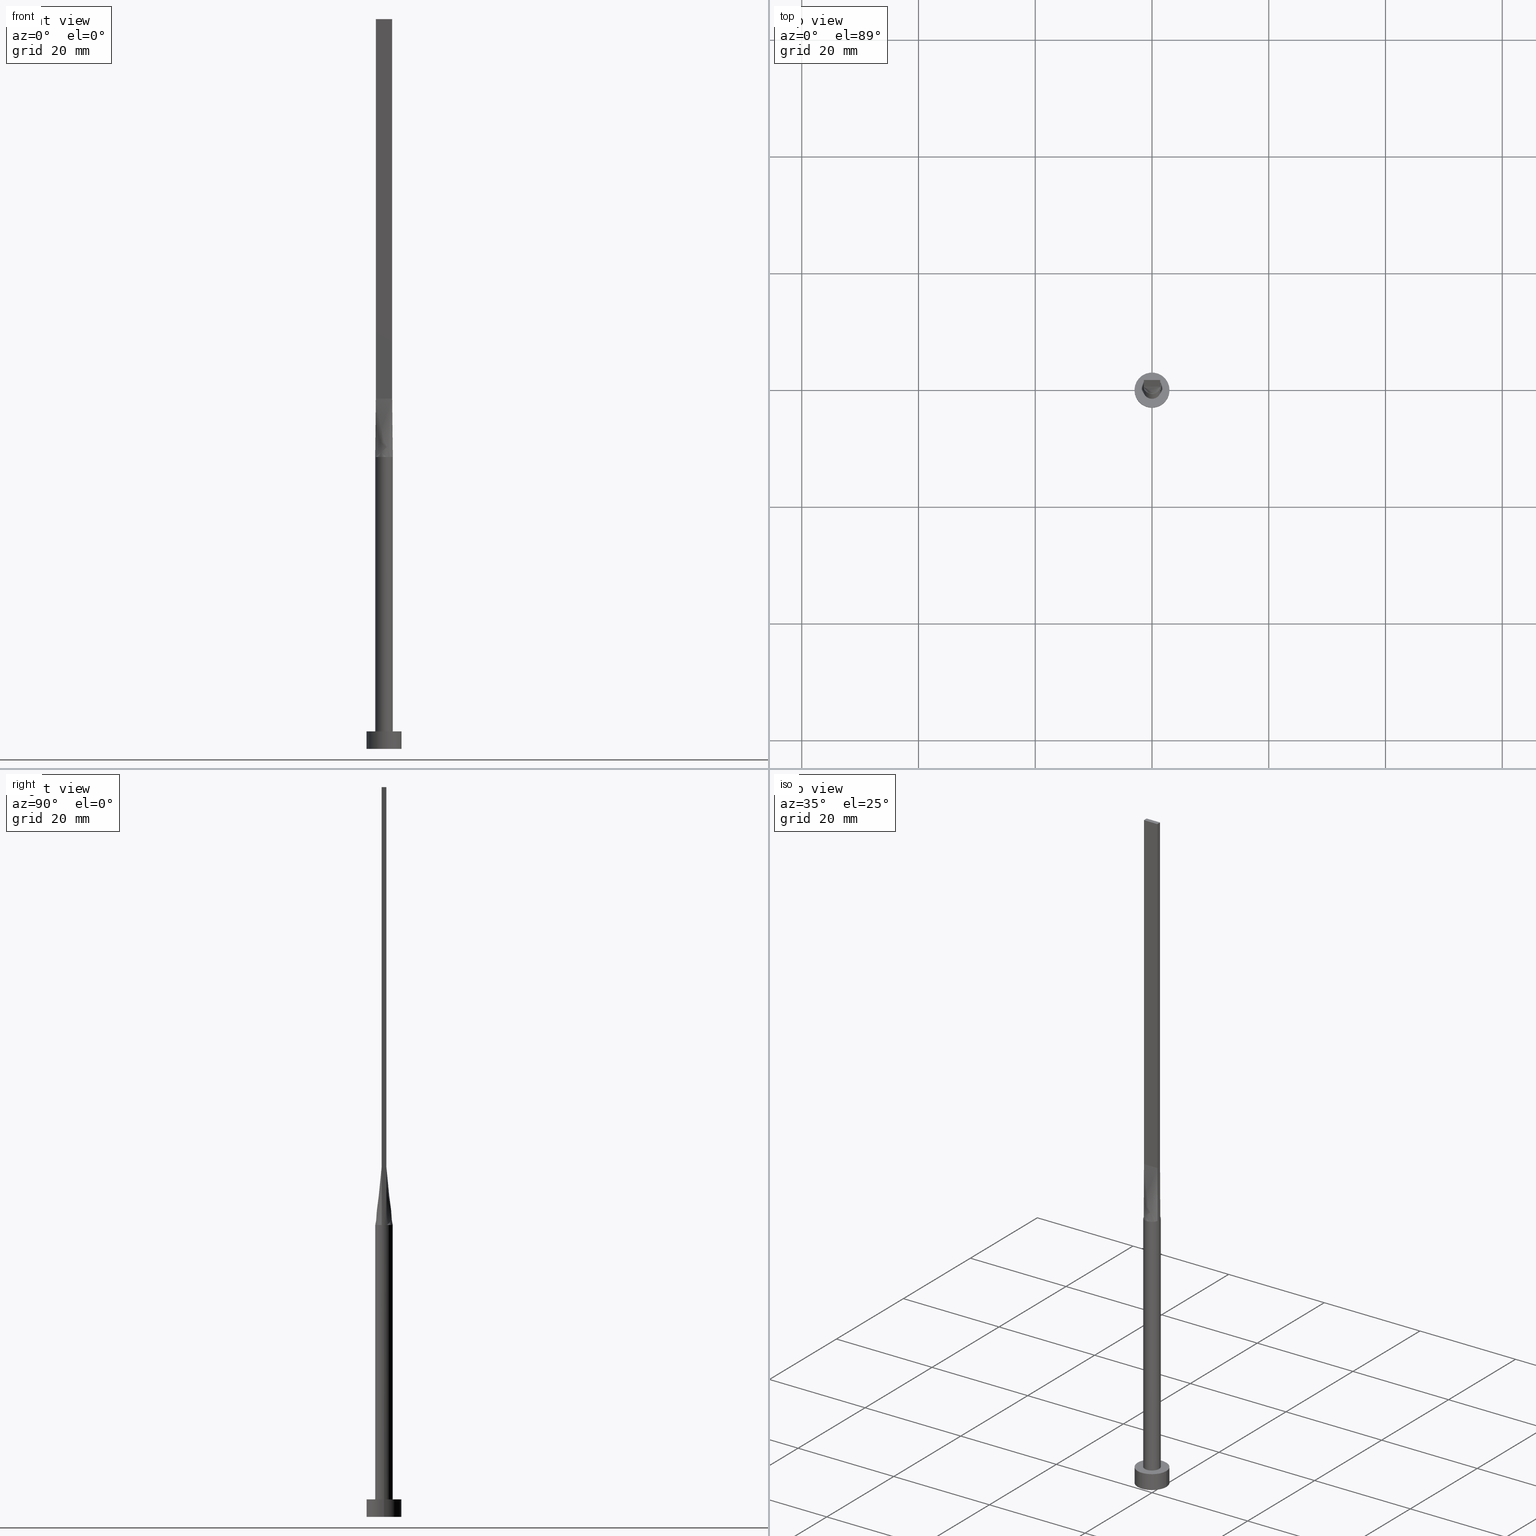
[diagram: canonical four-view strip — front | top / right | iso, engineering-drawing reading convention]
A machine part, canonical four-view strip (front | top / right | iso — engineering-drawing reading convention). The complete STEP part file that produces these views, byte-faithful:
ISO-10303-21;
HEADER;
FILE_DESCRIPTION (( 'STEP AP203' ),
    '1' );
FILE_NAME ('0fd5.STEP',
    '2026-02-12T09:08:40',
    ( '' ),
    ( '' ),
    'SwSTEP 2.0',
    'SolidWorks 2019',
    '' );
FILE_SCHEMA (( 'CONFIG_CONTROL_DESIGN' ));
ENDSEC;

DATA;
#1 = CARTESIAN_POINT ( 'NONE',  ( -1.283333333333333215, 0.4000000000000002442, 60.00000000000000000 ) ) ;
#2 = CALENDAR_DATE ( 2026, 12, 2 ) ;
#3 = LINE ( 'NONE', #353, #119 ) ;
#4 = CARTESIAN_POINT ( 'NONE',  ( 0.000000000000000000, 0.000000000000000000, 0.000000000000000000 ) ) ;
#5 = CARTESIAN_POINT ( 'NONE',  ( 1.480021770517838897, 0.2800062201479540103, 50.00000000000000711 ) ) ;
#6 = ORIENTED_EDGE ( 'NONE', *, *, #335, .F. ) ;
#7 = VECTOR ( 'NONE', #220, 1000.000000000000000 ) ;
#8 = CALENDAR_DATE ( 2026, 12, 2 ) ;
#9 = DIRECTION ( 'NONE',  ( -1.000000000000000000, -2.710505431213761085E-16, 0.000000000000000000 ) ) ;
#10 = VERTEX_POINT ( 'NONE', #196 ) ;
#11 = PERSON_AND_ORGANIZATION ( #421, #480 ) ;
#12 = APPROVAL ( #90, 'NEUR�EN�' ) ;
#13 = CARTESIAN_POINT ( 'NONE',  ( 1.421142960730617411, -0.4060408459230334111, 55.00000000000000711 ) ) ;
#14 = PERSON_AND_ORGANIZATION ( #421, #480 ) ;
#15 = LINE ( 'NONE', #93, #412 ) ;
#16 = ORIENTED_EDGE ( 'NONE', *, *, #24, .F. ) ;
#17 = CIRCLE ( 'NONE', #378, 3.000000000000000444 ) ;
#18 = AXIS2_PLACEMENT_3D ( 'NONE', #442, #533, #356 ) ;
#19 = ADVANCED_FACE ( 'NONE', ( #286 ), #422, .T. ) ;
#20 = LINE ( 'NONE', #13, #86 ) ;
#21 = CC_DESIGN_SECURITY_CLASSIFICATION ( #288, ( #296 ) ) ;
#22 = VERTEX_POINT ( 'NONE', #225 ) ;
#23 = DIRECTION ( 'NONE',  ( -2.710505431213761578E-16, -1.000000000000000000, 0.000000000000000000 ) ) ;
#24 = EDGE_CURVE ( 'NONE', #387, #574, #79, .T. ) ;
#25 = CARTESIAN_POINT ( 'NONE',  ( 1.283333333333333215, 0.4000000000000001887, 60.00000000000000000 ) ) ;
#26 = FACE_OUTER_BOUND ( 'NONE', #334, .T. ) ;
#27 =( LENGTH_UNIT ( ) NAMED_UNIT ( * ) SI_UNIT ( .MILLI., .METRE. ) );
#28 = CARTESIAN_POINT ( 'NONE',  ( -0.8166666666666659857, -0.3999999999999996336, 59.99999999999998579 ) ) ;
#29 = AXIS2_PLACEMENT_3D ( 'NONE', #560, #207, #63 ) ;
#30 = CC_DESIGN_PERSON_AND_ORGANIZATION_ASSIGNMENT ( #132, #326, ( #296 ) ) ;
#31 = CARTESIAN_POINT ( 'NONE',  ( 1.399999999999999689, 0.4000000000000002442, 125.0000000000000000 ) ) ;
#32 = FACE_OUTER_BOUND ( 'NONE', #454, .T. ) ;
#33 = FACE_OUTER_BOUND ( 'NONE', #136, .T. ) ;
#34 = ORIENTED_EDGE ( 'NONE', *, *, #572, .T. ) ;
#35 = CARTESIAN_POINT ( 'NONE',  ( 1.442362338805188937, 0.4121038472597355895, 50.00000000000000000 ) ) ;
#36 = CARTESIAN_POINT ( 'NONE',  ( 3.000000000000000444, 3.673940397442060361E-16, 0.000000000000000000 ) ) ;
#37 = CARTESIAN_POINT ( 'NONE',  ( -0.3767059690781856540, -1.463302066271690904, 50.00000000000001421 ) ) ;
#38 = FACE_BOUND ( 'NONE', #205, .T. ) ;
#39 = DIRECTION ( 'NONE',  ( -0.000000000000000000, -0.000000000000000000, -1.000000000000000000 ) ) ;
#40 = EDGE_CURVE ( 'NONE', #301, #574, #3, .T. ) ;
#41 = CARTESIAN_POINT ( 'NONE',  ( 1.212111761082483197, -0.8950936653899579376, 50.00000000000000000 ) ) ;
#42 = AXIS2_PLACEMENT_3D ( 'NONE', #451, #190, #203 ) ;
#43 = CARTESIAN_POINT ( 'NONE',  ( -1.399999999999999689, 0.4000000000000002442, 60.00000000000000711 ) ) ;
#44 = CARTESIAN_POINT ( 'NONE',  ( 1.114527776139990101, 1.017390422009413431, 50.00000000000000000 ) ) ;
#45 = CARTESIAN_POINT ( 'NONE',  ( -0.5833333333333325932, -0.3999999999999996336, 59.99999999999998579 ) ) ;
#46 = LINE ( 'NONE', #542, #204 ) ;
#47 = PERSON_AND_ORGANIZATION_ROLE ( 'design_owner' ) ;
#48 = DIRECTION ( 'NONE',  ( 5.808225924029488744E-17, 1.000000000000000000, -0.000000000000000000 ) ) ;
#49 = VECTOR ( 'NONE', #23, 1000.000000000000000 ) ;
#50 = ADVANCED_FACE ( 'NONE', ( #75 ), #569, .T. ) ;
#51 = APPROVAL_STATUS ( 'not_yet_approved' ) ;
#52 = CARTESIAN_POINT ( 'NONE',  ( 1.399999999999999911, -0.2666666666666664409, 60.00000000000000000 ) ) ;
#53 = CARTESIAN_POINT ( 'NONE',  ( 1.399999999999999689, 0.1333333333333334980, 60.00000000000000000 ) ) ;
#54 = EDGE_LOOP ( 'NONE', ( #554, #34, #187, #509, #330 ) ) ;
#55 = EDGE_CURVE ( 'NONE', #301, #251, #477, .T. ) ;
#56 = AXIS2_PLACEMENT_3D ( 'NONE', #4, #279, #503 ) ;
#57 = ORIENTED_EDGE ( 'NONE', *, *, #55, .T. ) ;
#58 = CARTESIAN_POINT ( 'NONE',  ( 1.500000000000000222, -0.1400549446402594711, 50.00000000000000711 ) ) ;
#59 = ORIENTED_EDGE ( 'NONE', *, *, #531, .T. ) ;
#60 = CARTESIAN_POINT ( 'NONE',  ( 0.000000000000000000, 0.000000000000000000, 3.000000000000000000 ) ) ;
#61 = AXIS2_PLACEMENT_3D ( 'NONE', #131, #404, #180 ) ;
#62 = ORIENTED_EDGE ( 'NONE', *, *, #105, .T. ) ;
#63 = DIRECTION ( 'NONE',  ( 1.000000000000000000, 0.000000000000000000, 0.000000000000000000 ) ) ;
#64 = PRODUCT ( '0fd5', '0fd5', '', ( #359 ) ) ;
#65 = CARTESIAN_POINT ( 'NONE',  ( 1.409267053536706671, 0.5276477295819161917, 50.00000000000001421 ) ) ;
#66 = CARTESIAN_POINT ( 'NONE',  ( 0.8665786268839186235, 1.235433898681765008, 50.00000000000000000 ) ) ;
#67 = LINE ( 'NONE', #310, #398 ) ;
#68 = ADVANCED_FACE ( 'NONE', ( #33 ), #110, .T. ) ;
#69 = CARTESIAN_POINT ( 'NONE',  ( 1.399999999999999689, 0.4000000000000002442, 60.00000000000000711 ) ) ;
#70 = CARTESIAN_POINT ( 'NONE',  ( -1.114527776139989212, 1.017390422009414319, 50.00000000000000711 ) ) ;
#71 = CARTESIAN_POINT ( 'NONE',  ( -1.421142960730617633, -0.4060408459230329670, 55.00000000000000711 ) ) ;
#72 = AXIS2_PLACEMENT_3D ( 'NONE', #192, #324, #418 ) ;
#73 = DIRECTION ( 'NONE',  ( 1.000000000000000000, 0.000000000000000000, 0.000000000000000000 ) ) ;
#74 = DIRECTION ( 'NONE',  ( 1.000000000000000000, 0.000000000000000000, 0.000000000000000000 ) ) ;
#75 = FACE_OUTER_BOUND ( 'NONE', #183, .T. ) ;
#76 = CARTESIAN_POINT ( 'NONE',  ( -1.212111761082482975, 0.8950936653899578266, 50.00000000000000000 ) ) ;
#77 = CARTESIAN_POINT ( 'NONE',  ( -3.000000000000000444, 0.000000000000000000, 3.000000000000000000 ) ) ;
#78 = ORIENTED_EDGE ( 'NONE', *, *, #105, .F. ) ;
#79 = LINE ( 'NONE', #272, #173 ) ;
#80 = CARTESIAN_POINT ( 'NONE',  ( -0.4666666666666661745, 0.4000000000000001887, 60.00000000000000000 ) ) ;
#81 = EDGE_CURVE ( 'NONE', #570, #22, #67, .T. ) ;
#82 = CARTESIAN_POINT ( 'NONE',  ( 1.421142960730617189, 0.4060408459230337996, 55.00000000000000711 ) ) ;
#83 = ORIENTED_EDGE ( 'NONE', *, *, #561, .T. ) ;
#84 = DIRECTION ( 'NONE',  ( -0.004228551254826051417, -0.001208157501378827629, -0.9999903298081123104 ) ) ;
#85 = ORIENTED_EDGE ( 'NONE', *, *, #502, .T. ) ;
#86 = VECTOR ( 'NONE', #139, 1000.000000000000000 ) ;
#87 = LOCAL_TIME ( 10, 8, 40.00000000000000000, #181 ) ;
#88 = DIRECTION ( 'NONE',  ( 0.000000000000000000, 0.000000000000000000, 1.000000000000000000 ) ) ;
#89 = EDGE_CURVE ( 'NONE', #149, #301, #214, .T. ) ;
#90 = APPROVAL_STATUS ( 'not_yet_approved' ) ;
#91 = FACE_OUTER_BOUND ( 'NONE', #54, .T. ) ;
#92 = ADVANCED_FACE ( 'NONE', ( #534 ), #331, .F. ) ;
#93 = CARTESIAN_POINT ( 'NONE',  ( 1.399999999999999689, 0.4000000000000002442, 60.00000000000000711 ) ) ;
#94 = VECTOR ( 'NONE', #84, 1000.000000000000000 ) ;
#95 =( GEOMETRIC_REPRESENTATION_CONTEXT ( 3 ) GLOBAL_UNCERTAINTY_ASSIGNED_CONTEXT ( ( #420 ) ) GLOBAL_UNIT_ASSIGNED_CONTEXT ( ( #27, #395, #348 ) ) REPRESENTATION_CONTEXT ( 'NONE', 'WORKASPACE' ) );
#96 = SHAPE_DEFINITION_REPRESENTATION ( #562, #140 ) ;
#97 = LINE ( 'NONE', #423, #544 ) ;
#98 = ORIENTED_EDGE ( 'NONE', *, *, #410, .F. ) ;
#99 = EDGE_CURVE ( 'NONE', #543, #116, #134, .T. ) ;
#100 = DATE_AND_TIME ( #455, #460 ) ;
#101 = CIRCLE ( 'NONE', #72, 3.000000000000000444 ) ;
#102 = EDGE_LOOP ( 'NONE', ( #85, #381 ) ) ;
#103 = DIRECTION ( 'NONE',  ( 1.000000000000000000, 0.000000000000000000, -0.000000000000000000 ) ) ;
#104 = ORIENTED_EDGE ( 'NONE', *, *, #200, .T. ) ;
#105 = EDGE_CURVE ( 'NONE', #387, #239, #46, .T. ) ;
#106 = CARTESIAN_POINT ( 'NONE',  ( 0.3767059690781852654, 1.463302066271692015, 50.00000000000001421 ) ) ;
#107 = B_SPLINE_SURFACE_WITH_KNOTS ( 'NONE', 3, 1, ( 
 ( #464, #291 ),
 ( #555, #52 ),
 ( #58, #236 ),
 ( #195, #53 ),
 ( #5, #453 ),
 ( #546, #415 ) ),
 .UNSPECIFIED., .F., .F., .F.,
 ( 4, 2, 4 ),
 ( 2, 2 ),
 ( 0.000000000000000000, 0.5000000000000000000, 1.000000000000000000 ),
 ( 0.000000000000000000, 1.000000000000000000 ),
 .UNSPECIFIED. ) ;
#108 = CARTESIAN_POINT ( 'NONE',  ( -1.399999999999999911, -0.3999999999999996336, 125.0000000000000000 ) ) ;
#109 = LINE ( 'NONE', #254, #289 ) ;
#110 = B_SPLINE_SURFACE_WITH_KNOTS ( 'NONE', 3, 1, ( 
 ( #218, #432 ),
 ( #401, #581 ),
 ( #393, #179 ),
 ( #345, #182 ),
 ( #471, #357 ),
 ( #120, #529 ) ),
 .UNSPECIFIED., .F., .F., .F.,
 ( 4, 2, 4 ),
 ( 2, 2 ),
 ( 0.000000000000000000, 0.5000000000000000000, 1.000000000000000000 ),
 ( 0.000000000000000000, 1.000000000000000000 ),
 .UNSPECIFIED. ) ;
#111 = DIRECTION ( 'NONE',  ( 1.000000000000000000, 5.329070518200751394E-15, 0.000000000000000000 ) ) ;
#112 = CARTESIAN_POINT ( 'NONE',  ( -0.7158926189626813041, -1.330660769095146634, 49.99999999999998579 ) ) ;
#113 = CARTESIAN_POINT ( 'NONE',  ( 0.1885753531885901724, 1.500000000000000666, 50.00000000000000711 ) ) ;
#114 = CARTESIAN_POINT ( 'NONE',  ( -1.442387148345315895, 0.4121110244020492197, 50.00000000000000000 ) ) ;
#115 = CARTESIAN_POINT ( 'NONE',  ( 1.114527776139989435, -1.017390422009414541, 50.00000000000001421 ) ) ;
#116 = VERTEX_POINT ( 'NONE', #361 ) ;
#117 = CARTESIAN_POINT ( 'NONE',  ( -1.399999999999999689, 0.4000000000000002442, 125.0000000000000000 ) ) ;
#118 = CARTESIAN_POINT ( 'NONE',  ( 0.000000000000000000, 0.000000000000000000, 50.00000000000000000 ) ) ;
#119 = VECTOR ( 'NONE', #222, 1000.000000000000000 ) ;
#120 = CARTESIAN_POINT ( 'NONE',  ( -1.442285921461235132, -0.4120816918460665224, 50.00000000000000000 ) ) ;
#121 = ORIENTED_EDGE ( 'NONE', *, *, #250, .F. ) ;
#122 = VECTOR ( 'NONE', #392, 1000.000000000000000 ) ;
#123 = CC_DESIGN_APPROVAL ( #201, ( #288 ) ) ;
#124 = FACE_OUTER_BOUND ( 'NONE', #102, .T. ) ;
#125 = DIRECTION ( 'NONE',  ( -1.000000000000000000, 0.000000000000000000, 0.000000000000000000 ) ) ;
#126 = DIRECTION ( 'NONE',  ( -0.000000000000000000, -0.000000000000000000, -1.000000000000000000 ) ) ;
#127 = ADVANCED_FACE ( 'NONE', ( #456 ), #238, .T. ) ;
#128 = PLANE ( 'NONE',  #320 ) ;
#129 = CARTESIAN_POINT ( 'NONE',  ( -1.442387148345315895, 0.4121110244020492197, 50.00000000000000000 ) ) ;
#130 = CARTESIAN_POINT ( 'NONE',  ( 0.9333333333333334592, -0.3999999999999997446, 60.00000000000000000 ) ) ;
#131 = CARTESIAN_POINT ( 'NONE',  ( 0.000000000000000000, 0.000000000000000000, 0.000000000000000000 ) ) ;
#132 = PERSON_AND_ORGANIZATION ( #421, #480 ) ;
#133 = DIRECTION ( 'NONE',  ( 0.000000000000000000, 0.000000000000000000, 1.000000000000000000 ) ) ;
#134 = CIRCLE ( 'NONE', #459, 1.500000000000000222 ) ;
#135 = CC_DESIGN_APPROVAL ( #12, ( #296 ) ) ;
#136 = EDGE_LOOP ( 'NONE', ( #520, #530, #506, #294, #165 ) ) ;
#137 = COORDINATED_UNIVERSAL_TIME_OFFSET ( 1, 0, .AHEAD. ) ;
#138 = ADVANCED_FACE ( 'NONE', ( #230 ), #283, .T. ) ;
#139 = DIRECTION ( 'NONE',  ( -0.004228551254826029733, 0.001208157501378870997, 0.9999903298081123104 ) ) ;
#140 = ADVANCED_BREP_SHAPE_REPRESENTATION ( '0fd5', ( #475, #56 ), #95 ) ;
#141 = DATE_TIME_ROLE ( 'creation_date' ) ;
#142 = DIRECTION ( 'NONE',  ( -1.000000000000000000, 5.808225924029488744E-17, 0.000000000000000000 ) ) ;
#143 = APPROVAL_DATE_TIME ( #240, #443 ) ;
#144 = DIRECTION ( 'NONE',  ( -2.710505431213761085E-16, 1.000000000000000000, -0.000000000000000000 ) ) ;
#145 = ORIENTED_EDGE ( 'NONE', *, *, #292, .F. ) ;
#146 = CIRCLE ( 'NONE', #360, 1.500000000000000222 ) ;
#147 = CARTESIAN_POINT ( 'NONE',  ( -1.359280768448767551, -0.6502025712814705205, 50.00000000000000000 ) ) ;
#148 = APPLICATION_CONTEXT ( 'configuration controlled 3d designs of mechanical parts and assemblies' ) ;
#149 = VERTEX_POINT ( 'NONE', #186 ) ;
#150 = ADVANCED_FACE ( 'NONE', ( #91 ), #107, .T. ) ;
#151 = CARTESIAN_POINT ( 'NONE',  ( 3.000000000000000444, 3.673940397442060361E-16, 3.000000000000000000 ) ) ;
#152 = EDGE_CURVE ( 'NONE', #309, #574, #20, .T. ) ;
#153 = EDGE_LOOP ( 'NONE', ( #501, #166, #287, #145, #247, #374 ) ) ;
#154 = FACE_OUTER_BOUND ( 'NONE', #416, .T. ) ;
#155 = DESIGN_CONTEXT ( 'detailed design', #148, 'design' ) ;
#156 = CARTESIAN_POINT ( 'NONE',  ( 1.399999999999999689, 0.4000000000000002442, 125.0000000000000000 ) ) ;
#157 = ADVANCED_FACE ( 'NONE', ( #413 ), #548, .T. ) ;
#158 = CARTESIAN_POINT ( 'NONE',  ( -1.399999999999999911, -0.3999999999999996336, 60.00000000000000711 ) ) ;
#159 = CARTESIAN_POINT ( 'NONE',  ( -1.212111761082483863, -0.8950936653899566053, 50.00000000000000000 ) ) ;
#160 = VECTOR ( 'NONE', #226, 1000.000000000000000 ) ;
#161 = DIRECTION ( 'NONE',  ( 1.000000000000000000, 0.000000000000000000, 0.000000000000000000 ) ) ;
#162 = LINE ( 'NONE', #31, #446 ) ;
#163 = CARTESIAN_POINT ( 'NONE',  ( 0.1885753531885901724, 1.500000000000000666, 50.00000000000000711 ) ) ;
#164 = CARTESIAN_POINT ( 'NONE',  ( -0.2333333333333329207, -0.3999999999999996336, 59.99999999999998579 ) ) ;
#165 = ORIENTED_EDGE ( 'NONE', *, *, #363, .F. ) ;
#166 = ORIENTED_EDGE ( 'NONE', *, *, #496, .F. ) ;
#167 = CARTESIAN_POINT ( 'NONE',  ( 0.000000000000000000, 0.000000000000000000, 3.000000000000000000 ) ) ;
#168 = DIRECTION ( 'NONE',  ( 2.710505431213761578E-16, 1.000000000000000000, 0.000000000000000000 ) ) ;
#169 = CARTESIAN_POINT ( 'NONE',  ( 1.442285921461234910, -0.4120816918460670220, 50.00000000000000000 ) ) ;
#170 = VERTEX_POINT ( 'NONE', #364 ) ;
#171 = CARTESIAN_POINT ( 'NONE',  ( -1.500000000000000222, 0.000000000000000000, 50.00000000000000000 ) ) ;
#172 = ORIENTED_EDGE ( 'NONE', *, *, #572, .F. ) ;
#173 = VECTOR ( 'NONE', #488, 1000.000000000000000 ) ;
#174 = CARTESIAN_POINT ( 'NONE',  ( -1.399999999999999689, 0.4000000000000002442, 60.00000000000000711 ) ) ;
#175 = LOCAL_TIME ( 10, 8, 40.00000000000000000, #323 ) ;
#176 = PRODUCT_RELATED_PRODUCT_CATEGORY ( 'detail', '', ( #64 ) ) ;
#177 = LINE ( 'NONE', #351, #160 ) ;
#178 = DIRECTION ( 'NONE',  ( 1.000000000000000000, 0.000000000000000000, 0.000000000000000000 ) ) ;
#179 = CARTESIAN_POINT ( 'NONE',  ( -1.399999999999999689, 0.1333333333333336923, 60.00000000000000000 ) ) ;
#180 = DIRECTION ( 'NONE',  ( 1.000000000000000000, 0.000000000000000000, 0.000000000000000000 ) ) ;
#181 = COORDINATED_UNIVERSAL_TIME_OFFSET ( 1, 0, .AHEAD. ) ;
#182 = CARTESIAN_POINT ( 'NONE',  ( -1.399999999999999689, -0.1333333333333328596, 60.00000000000000000 ) ) ;
#183 = EDGE_LOOP ( 'NONE', ( #376, #284, #59, #425 ) ) ;
#184 = EDGE_CURVE ( 'NONE', #219, #489, #322, .T. ) ;
#185 = APPLICATION_PROTOCOL_DEFINITION ( 'international standard', 'config_control_design', 1994, #375 ) ;
#186 = CARTESIAN_POINT ( 'NONE',  ( -1.399999999999999689, 0.4000000000000002442, 60.00000000000000711 ) ) ;
#187 = ORIENTED_EDGE ( 'NONE', *, *, #567, .T. ) ;
#188 = AXIS2_PLACEMENT_3D ( 'NONE', #439, #481, #558 ) ;
#189 = DATE_AND_TIME ( #8, #482 ) ;
#190 = DIRECTION ( 'NONE',  ( -0.000000000000000000, -0.000000000000000000, -1.000000000000000000 ) ) ;
#191 = APPROVAL_STATUS ( 'not_yet_approved' ) ;
#192 = CARTESIAN_POINT ( 'NONE',  ( 0.000000000000000000, 0.000000000000000000, 3.000000000000000000 ) ) ;
#193 = ADVANCED_FACE ( 'NONE', ( #498 ), #277, .F. ) ;
#194 = PERSON_AND_ORGANIZATION_ROLE ( 'classification_officer' ) ;
#195 = CARTESIAN_POINT ( 'NONE',  ( 1.499999999999999556, 0.1400549446402590548, 49.99999999999999289 ) ) ;
#196 = CARTESIAN_POINT ( 'NONE',  ( 1.399999999999999689, 0.4000000000000002442, 60.00000000000000711 ) ) ;
#197 = EDGE_CURVE ( 'NONE', #219, #466, #101, .T. ) ;
#198 = VECTOR ( 'NONE', #550, 1000.000000000000000 ) ;
#199 = ORIENTED_EDGE ( 'NONE', *, *, #209, .T. ) ;
#200 = EDGE_CURVE ( 'NONE', #10, #149, #97, .T. ) ;
#201 = APPROVAL ( #51, 'NEUR�EN�' ) ;
#202 = ORIENTED_EDGE ( 'NONE', *, *, #184, .F. ) ;
#203 = DIRECTION ( 'NONE',  ( -1.000000000000000000, 0.000000000000000000, 0.000000000000000000 ) ) ;
#204 = VECTOR ( 'NONE', #280, 1000.000000000000000 ) ;
#205 = EDGE_LOOP ( 'NONE', ( #494, #368 ) ) ;
#206 = B_SPLINE_SURFACE_WITH_KNOTS ( 'NONE', 3, 1, ( 
 ( #383, #69 ),
 ( #65, #25 ),
 ( #211, #210 ),
 ( #332, #514 ),
 ( #385, #338 ),
 ( #518, #298 ),
 ( #257, #340 ),
 ( #106, #293 ),
 ( #113, #435 ),
 ( #391, #571 ),
 ( #527, #465 ),
 ( #248, #80 ),
 ( #491, #394 ),
 ( #397, #312 ),
 ( #76, #575 ),
 ( #266, #269 ),
 ( #445, #1 ),
 ( #539, #43 ) ),
 .UNSPECIFIED., .F., .F., .F.,
 ( 4, 2, 2, 2, 2, 2, 2, 2, 4 ),
 ( 2, 2 ),
 ( 0.000000000000000000, 0.1250000000000000833, 0.2500000000000001665, 0.3750000000000001110, 0.5000000000000001110, 0.6250000000000002220, 0.7500000000000001110, 0.8750000000000001110, 1.000000000000000000 ),
 ( 0.000000000000000000, 1.000000000000000000 ),
 .UNSPECIFIED. ) ;
#207 = DIRECTION ( 'NONE',  ( 0.000000000000000000, 0.000000000000000000, 1.000000000000000000 ) ) ;
#208 = ORIENTED_EDGE ( 'NONE', *, *, #297, .T. ) ;
#209 = EDGE_CURVE ( 'NONE', #574, #10, #15, .T. ) ;
#210 = CARTESIAN_POINT ( 'NONE',  ( 1.166666666666666519, 0.4000000000000001332, 60.00000000000000000 ) ) ;
#211 = CARTESIAN_POINT ( 'NONE',  ( 1.359280768448766663, 0.6502025712814714087, 50.00000000000000000 ) ) ;
#212 = AXIS2_PLACEMENT_3D ( 'NONE', #367, #409, #321 ) ;
#213 = CARTESIAN_POINT ( 'NONE',  ( 0.000000000000000000, 0.000000000000000000, 50.00000000000000000 ) ) ;
#214 = LINE ( 'NONE', #174, #532 ) ;
#215 = ORIENTED_EDGE ( 'NONE', *, *, #507, .F. ) ;
#216 = CARTESIAN_POINT ( 'NONE',  ( 1.442393550978850802, -0.4121129214357137083, 50.00000000000000000 ) ) ;
#217 = CARTESIAN_POINT ( 'NONE',  ( 0.7158926189626808601, 1.330660769095147966, 49.99999999999999289 ) ) ;
#218 = CARTESIAN_POINT ( 'NONE',  ( -1.442285921461234688, 0.4120816918460674105, 50.00000000000000000 ) ) ;
#219 = VERTEX_POINT ( 'NONE', #371 ) ;
#220 = DIRECTION ( 'NONE',  ( -0.000000000000000000, -0.000000000000000000, -1.000000000000000000 ) ) ;
#221 = CC_DESIGN_PERSON_AND_ORGANIZATION_ASSIGNMENT ( #545, #276, ( #424 ) ) ;
#222 = DIRECTION ( 'NONE',  ( 1.000000000000000000, -5.808225924029488744E-17, 0.000000000000000000 ) ) ;
#223 = DIRECTION ( 'NONE',  ( 0.000000000000000000, 0.000000000000000000, 1.000000000000000000 ) ) ;
#224 = DIRECTION ( 'NONE',  ( -0.000000000000000000, -0.000000000000000000, -1.000000000000000000 ) ) ;
#225 = CARTESIAN_POINT ( 'NONE',  ( 1.500000000000000222, 1.836970198721030181E-16, 3.000000000000000000 ) ) ;
#226 = DIRECTION ( 'NONE',  ( 0.004228551254826029733, -0.001208157501378838471, 0.9999903298081123104 ) ) ;
#227 = CARTESIAN_POINT ( 'NONE',  ( -1.409267053536706671, 0.5276477295819163027, 50.00000000000000711 ) ) ;
#228 = CARTESIAN_POINT ( 'NONE',  ( 0.8665786268839185125, -1.235433898681766340, 50.00000000000002842 ) ) ;
#229 = APPLICATION_PROTOCOL_DEFINITION ( 'international standard', 'config_control_design', 1994, #148 ) ;
#230 = FACE_OUTER_BOUND ( 'NONE', #402, .T. ) ;
#231 = PERSON_AND_ORGANIZATION_ROLE ( 'creator' ) ;
#232 = APPROVAL_PERSON_ORGANIZATION ( #549, #201, #551 ) ;
#233 = CARTESIAN_POINT ( 'NONE',  ( 0.000000000000000000, 0.000000000000000000, 50.00000000000000000 ) ) ;
#234 = CC_DESIGN_APPROVAL ( #443, ( #424 ) ) ;
#235 = APPROVAL_DATE_TIME ( #285, #201 ) ;
#236 = CARTESIAN_POINT ( 'NONE',  ( 1.399999999999999689, -0.1333333333333331372, 60.00000000000000000 ) ) ;
#237 = EDGE_CURVE ( 'NONE', #466, #281, #327, .T. ) ;
#238 = CYLINDRICAL_SURFACE ( 'NONE', #212, 3.000000000000000444 ) ;
#239 = VERTEX_POINT ( 'NONE', #307 ) ;
#240 = DATE_AND_TIME ( #362, #384 ) ;
#241 = EDGE_LOOP ( 'NONE', ( #433, #333, #478, #57 ) ) ;
#242 = AXIS2_PLACEMENT_3D ( 'NONE', #118, #405, #161 ) ;
#243 = CARTESIAN_POINT ( 'NONE',  ( -1.283333333333333215, -0.3999999999999996336, 60.00000000000000000 ) ) ;
#244 = CARTESIAN_POINT ( 'NONE',  ( -1.442285921461235132, -0.4120816918460664113, 50.00000000000000000 ) ) ;
#245 = CC_DESIGN_PERSON_AND_ORGANIZATION_ASSIGNMENT ( #450, #231, ( #296 ) ) ;
#246 = DIRECTION ( 'NONE',  ( 2.710505431213761085E-16, -1.000000000000000000, 0.000000000000000000 ) ) ;
#247 = ORIENTED_EDGE ( 'NONE', *, *, #410, .T. ) ;
#248 = CARTESIAN_POINT ( 'NONE',  ( -0.7158926189626803049, 1.330660769095148410, 50.00000000000000000 ) ) ;
#249 = AXIS2_PLACEMENT_3D ( 'NONE', #536, #267, #168 ) ;
#250 = EDGE_CURVE ( 'NONE', #311, #387, #109, .T. ) ;
#251 = VERTEX_POINT ( 'NONE', #429 ) ;
#252 = DIRECTION ( 'NONE',  ( -1.000000000000000000, 0.000000000000000000, 0.000000000000000000 ) ) ;
#253 = VERTEX_POINT ( 'NONE', #35 ) ;
#254 = CARTESIAN_POINT ( 'NONE',  ( -1.399999999999999911, -0.3999999999999996336, 125.0000000000000000 ) ) ;
#255 = CARTESIAN_POINT ( 'NONE',  ( -1.212111761082482975, 0.8950936653899578266, 50.00000000000000000 ) ) ;
#256 = CARTESIAN_POINT ( 'NONE',  ( -1.114527776139990323, -1.017390422009413209, 50.00000000000001421 ) ) ;
#257 = CARTESIAN_POINT ( 'NONE',  ( 0.7158926189626808601, 1.330660769095147966, 49.99999999999999289 ) ) ;
#258 = CIRCLE ( 'NONE', #328, 1.500000000000000222 ) ;
#259 = LINE ( 'NONE', #82, #122 ) ;
#260 = CARTESIAN_POINT ( 'NONE',  ( 0.1166666666666669183, -0.3999999999999996336, 59.99999999999998579 ) ) ;
#261 = EDGE_CURVE ( 'NONE', #239, #10, #303, .T. ) ;
#262 = FACE_OUTER_BOUND ( 'NONE', #406, .T. ) ;
#263 = CARTESIAN_POINT ( 'NONE',  ( -1.399999999999999911, -0.3999999999999996336, 125.0000000000000000 ) ) ;
#264 = CARTESIAN_POINT ( 'NONE',  ( -0.8665786268839192896, -1.235433898681764786, 50.00000000000000711 ) ) ;
#265 = EDGE_LOOP ( 'NONE', ( #199, #290, #78, #366 ) ) ;
#266 = CARTESIAN_POINT ( 'NONE',  ( -1.359280768448767329, 0.6502025712814717417, 50.00000000000000711 ) ) ;
#267 = DIRECTION ( 'NONE',  ( 1.000000000000000000, -2.710505431213761578E-16, 0.000000000000000000 ) ) ;
#268 = CARTESIAN_POINT ( 'NONE',  ( -0.4666666666666660079, -0.3999999999999996336, 59.99999999999998579 ) ) ;
#269 = CARTESIAN_POINT ( 'NONE',  ( -1.166666666666666519, 0.4000000000000002442, 60.00000000000000000 ) ) ;
#270 = CARTESIAN_POINT ( 'NONE',  ( 0.000000000000000000, 0.000000000000000000, 50.00000000000000000 ) ) ;
#271 = AXIS2_PLACEMENT_3D ( 'NONE', #275, #9, #246 ) ;
#272 = CARTESIAN_POINT ( 'NONE',  ( 1.399999999999999911, -0.3999999999999998002, 125.0000000000000000 ) ) ;
#273 = ORIENTED_EDGE ( 'NONE', *, *, #99, .F. ) ;
#274 = AXIS2_PLACEMENT_3D ( 'NONE', #513, #133, #103 ) ;
#275 = CARTESIAN_POINT ( 'NONE',  ( 1.399999999999999911, -0.3999999999999998002, 125.0000000000000000 ) ) ;
#276 = PERSON_AND_ORGANIZATION_ROLE ( 'creator' ) ;
#277 = PLANE ( 'NONE',  #557 ) ;
#278 = ORIENTED_EDGE ( 'NONE', *, *, #461, .T. ) ;
#279 = DIRECTION ( 'NONE',  ( 0.000000000000000000, 0.000000000000000000, 1.000000000000000000 ) ) ;
#280 = DIRECTION ( 'NONE',  ( -2.710505431213761085E-16, 1.000000000000000000, 0.000000000000000000 ) ) ;
#281 = VERTEX_POINT ( 'NONE', #515 ) ;
#282 = EDGE_CURVE ( 'NONE', #170, #22, #258, .T. ) ;
#283 = PLANE ( 'NONE',  #274 ) ;
#284 = ORIENTED_EDGE ( 'NONE', *, *, #184, .T. ) ;
#285 = DATE_AND_TIME ( #2, #87 ) ;
#286 = FACE_OUTER_BOUND ( 'NONE', #241, .T. ) ;
#287 = ORIENTED_EDGE ( 'NONE', *, *, #457, .F. ) ;
#288 = SECURITY_CLASSIFICATION ( '', '', #411 ) ;
#289 = VECTOR ( 'NONE', #382, 1000.000000000000000 ) ;
#290 = ORIENTED_EDGE ( 'NONE', *, *, #261, .F. ) ;
#291 = CARTESIAN_POINT ( 'NONE',  ( 1.399999999999999911, -0.3999999999999998002, 60.00000000000000711 ) ) ;
#292 = EDGE_CURVE ( 'NONE', #116, #251, #427, .T. ) ;
#293 = CARTESIAN_POINT ( 'NONE',  ( 0.2333333333333340864, 0.4000000000000001887, 59.99999999999998579 ) ) ;
#294 = ORIENTED_EDGE ( 'NONE', *, *, #89, .F. ) ;
#295 = DIRECTION ( 'NONE',  ( -0.000000000000000000, -0.000000000000000000, -1.000000000000000000 ) ) ;
#296 = PRODUCT_DEFINITION_FORMATION_WITH_SPECIFIED_SOURCE ( 'LIBOVOLN�', '', #64, .NOT_KNOWN. ) ;
#297 = EDGE_CURVE ( 'NONE', #302, #311, #428, .T. ) ;
#298 = CARTESIAN_POINT ( 'NONE',  ( 0.5833333333333334814, 0.4000000000000001887, 59.99999999999998579 ) ) ;
#299 = DIRECTION ( 'NONE',  ( 0.000000000000000000, 0.000000000000000000, 1.000000000000000000 ) ) ;
#300 = CARTESIAN_POINT ( 'NONE',  ( 1.166666666666666741, -0.3999999999999997446, 60.00000000000000000 ) ) ;
#301 = VERTEX_POINT ( 'NONE', #158 ) ;
#302 = VERTEX_POINT ( 'NONE', #566 ) ;
#303 = LINE ( 'NONE', #431, #372 ) ;
#304 = CARTESIAN_POINT ( 'NONE',  ( -0.7158926189626803049, 1.330660769095148410, 50.00000000000000000 ) ) ;
#305 = CARTESIAN_POINT ( 'NONE',  ( 0.5833333333333334814, -0.3999999999999997446, 60.00000000000000000 ) ) ;
#306 = CC_DESIGN_DATE_AND_TIME_ASSIGNMENT ( #189, #547, ( #288 ) ) ;
#307 = CARTESIAN_POINT ( 'NONE',  ( 1.399999999999999689, 0.4000000000000002442, 125.0000000000000000 ) ) ;
#308 = APPROVAL_PERSON_ORGANIZATION ( #541, #12, #499 ) ;
#309 = VERTEX_POINT ( 'NONE', #216 ) ;
#310 = CARTESIAN_POINT ( 'NONE',  ( 1.500000000000000222, 1.836970198721030181E-16, 50.00000000000000000 ) ) ;
#311 = VERTEX_POINT ( 'NONE', #108 ) ;
#312 = CARTESIAN_POINT ( 'NONE',  ( -0.8166666666666662078, 0.4000000000000001887, 60.00000000000000000 ) ) ;
#313 = CARTESIAN_POINT ( 'NONE',  ( 0.4666666666666670071, -0.3999999999999997446, 60.00000000000000000 ) ) ;
#314 = ORIENTED_EDGE ( 'NONE', *, *, #502, .F. ) ;
#315 = CARTESIAN_POINT ( 'NONE',  ( -1.399999999999999689, 0.4000000000000002442, 125.0000000000000000 ) ) ;
#316 = ADVANCED_FACE ( 'NONE', ( #262 ), #474, .F. ) ;
#317 = CARTESIAN_POINT ( 'NONE',  ( 1.409267053536706671, 0.5276477295819161917, 50.00000000000001421 ) ) ;
#318 = CARTESIAN_POINT ( 'NONE',  ( 1.399999999999999911, -0.3999999999999998002, 60.00000000000000711 ) ) ;
#319 = LINE ( 'NONE', #315, #7 ) ;
#320 = AXIS2_PLACEMENT_3D ( 'NONE', #486, #223, #352 ) ;
#321 = DIRECTION ( 'NONE',  ( -1.000000000000000000, 0.000000000000000000, 0.000000000000000000 ) ) ;
#322 = LINE ( 'NONE', #151, #198 ) ;
#323 = COORDINATED_UNIVERSAL_TIME_OFFSET ( 1, 0, .AHEAD. ) ;
#324 = DIRECTION ( 'NONE',  ( 0.000000000000000000, 0.000000000000000000, 1.000000000000000000 ) ) ;
#325 = ADVANCED_FACE ( 'NONE', ( #154 ), #379, .F. ) ;
#326 = PERSON_AND_ORGANIZATION_ROLE ( 'design_supplier' ) ;
#327 = LINE ( 'NONE', #505, #504 ) ;
#328 = AXIS2_PLACEMENT_3D ( 'NONE', #60, #563, #73 ) ;
#329 = CARTESIAN_POINT ( 'NONE',  ( -1.399999999999999911, -0.3999999999999996336, 60.00000000000000711 ) ) ;
#330 = ORIENTED_EDGE ( 'NONE', *, *, #152, .F. ) ;
#331 = PLANE ( 'NONE',  #271 ) ;
#332 = CARTESIAN_POINT ( 'NONE',  ( 1.212111761082483197, 0.8950936653899574935, 50.00000000000000000 ) ) ;
#333 = ORIENTED_EDGE ( 'NONE', *, *, #152, .T. ) ;
#334 = EDGE_LOOP ( 'NONE', ( #83, #369, #389, #553 ) ) ;
#335 = EDGE_CURVE ( 'NONE', #239, #302, #162, .T. ) ;
#336 = DIRECTION ( 'NONE',  ( 1.000000000000000000, 0.000000000000000000, 0.000000000000000000 ) ) ;
#337 = VECTOR ( 'NONE', #346, 1000.000000000000000 ) ;
#338 = CARTESIAN_POINT ( 'NONE',  ( 0.8166666666666666519, 0.4000000000000001887, 59.99999999999998579 ) ) ;
#339 = CARTESIAN_POINT ( 'NONE',  ( -1.359280768448767329, 0.6502025712814717417, 50.00000000000000711 ) ) ;
#340 = CARTESIAN_POINT ( 'NONE',  ( 0.4666666666666670071, 0.4000000000000001887, 59.99999999999998579 ) ) ;
#341 = CARTESIAN_POINT ( 'NONE',  ( -0.3767059690781846548, 1.463302066271692015, 50.00000000000000000 ) ) ;
#342 = CARTESIAN_POINT ( 'NONE',  ( 0.1885753531885892564, -1.499999999999999778, 50.00000000000001421 ) ) ;
#343 = DIRECTION ( 'NONE',  ( 0.000000000000000000, 0.000000000000000000, 1.000000000000000000 ) ) ;
#344 = CARTESIAN_POINT ( 'NONE',  ( 1.500000000000000000, -9.795443734464536283E-18, 50.00000000000000000 ) ) ;
#345 = CARTESIAN_POINT ( 'NONE',  ( -1.500000000000000222, -0.1400549446402585274, 49.99999999999999289 ) ) ;
#346 = DIRECTION ( 'NONE',  ( -0.000000000000000000, -0.000000000000000000, -1.000000000000000000 ) ) ;
#347 = AXIS2_PLACEMENT_3D ( 'NONE', #270, #39, #125 ) ;
#348 =( NAMED_UNIT ( * ) SI_UNIT ( $, .STERADIAN. ) SOLID_ANGLE_UNIT ( ) );
#349 = DIRECTION ( 'NONE',  ( -2.710505431213761578E-16, -1.000000000000000000, 0.000000000000000000 ) ) ;
#350 = EDGE_CURVE ( 'NONE', #22, #170, #146, .T. ) ;
#351 = CARTESIAN_POINT ( 'NONE',  ( -1.421142960730617189, 0.4060408459230336331, 55.00000000000000711 ) ) ;
#352 = DIRECTION ( 'NONE',  ( 1.000000000000000000, 0.000000000000000000, -0.000000000000000000 ) ) ;
#353 = CARTESIAN_POINT ( 'NONE',  ( -1.399999999999999911, -0.3999999999999996336, 60.00000000000000711 ) ) ;
#354 = ORIENTED_EDGE ( 'NONE', *, *, #461, .F. ) ;
#355 = CC_DESIGN_PERSON_AND_ORGANIZATION_ASSIGNMENT ( #11, #47, ( #64 ) ) ;
#356 = DIRECTION ( 'NONE',  ( 1.000000000000000000, 0.000000000000000000, 0.000000000000000000 ) ) ;
#357 = CARTESIAN_POINT ( 'NONE',  ( -1.399999999999999911, -0.2666666666666661634, 60.00000000000000000 ) ) ;
#358 = ADVANCED_FACE ( 'NONE', ( #26 ), #206, .T. ) ;
#359 = MECHANICAL_CONTEXT ( 'NONE', #375, 'mechanical' ) ;
#360 = AXIS2_PLACEMENT_3D ( 'NONE', #167, #343, #336 ) ;
#361 = CARTESIAN_POINT ( 'NONE',  ( -1.500000000000000222, 8.735352324927310277E-17, 50.00000000000000000 ) ) ;
#362 = CALENDAR_DATE ( 2026, 12, 2 ) ;
#363 = EDGE_CURVE ( 'NONE', #543, #149, #177, .T. ) ;
#364 = CARTESIAN_POINT ( 'NONE',  ( -1.500000000000000222, 0.000000000000000000, 3.000000000000000000 ) ) ;
#365 = COORDINATED_UNIVERSAL_TIME_OFFSET ( 1, 0, .AHEAD. ) ;
#366 = ORIENTED_EDGE ( 'NONE', *, *, #24, .T. ) ;
#367 = CARTESIAN_POINT ( 'NONE',  ( 0.000000000000000000, 0.000000000000000000, 3.000000000000000000 ) ) ;
#368 = ORIENTED_EDGE ( 'NONE', *, *, #350, .F. ) ;
#369 = ORIENTED_EDGE ( 'NONE', *, *, #363, .T. ) ;
#370 = CALENDAR_DATE ( 2026, 12, 2 ) ;
#371 = CARTESIAN_POINT ( 'NONE',  ( 3.000000000000000444, 3.673940397442060361E-16, 3.000000000000000000 ) ) ;
#372 = VECTOR ( 'NONE', #295, 1000.000000000000000 ) ;
#373 = EDGE_LOOP ( 'NONE', ( #202, #314, #516, #473 ) ) ;
#374 = ORIENTED_EDGE ( 'NONE', *, *, #282, .T. ) ;
#375 = APPLICATION_CONTEXT ( 'configuration controlled 3d designs of mechanical parts and assemblies' ) ;
#376 = ORIENTED_EDGE ( 'NONE', *, *, #197, .F. ) ;
#377 = CLOSED_SHELL ( 'NONE', ( #485, #50, #127, #463, #325, #157, #19, #150, #68, #358, #316, #540, #193, #92, #138 ) ) ;
#378 = AXIS2_PLACEMENT_3D ( 'NONE', #386, #400, #178 ) ;
#379 = PLANE ( 'NONE',  #188 ) ;
#380 = CC_DESIGN_DATE_AND_TIME_ASSIGNMENT ( #414, #141, ( #424 ) ) ;
#381 = ORIENTED_EDGE ( 'NONE', *, *, #197, .T. ) ;
#382 = DIRECTION ( 'NONE',  ( 1.000000000000000000, -5.808225924029488744E-17, 0.000000000000000000 ) ) ;
#383 = CARTESIAN_POINT ( 'NONE',  ( 1.442285921461234910, 0.4120816918460671330, 50.00000000000000000 ) ) ;
#384 = LOCAL_TIME ( 10, 8, 40.00000000000000000, #365 ) ;
#385 = CARTESIAN_POINT ( 'NONE',  ( 1.114527776139990101, 1.017390422009413431, 50.00000000000000000 ) ) ;
#386 = CARTESIAN_POINT ( 'NONE',  ( 0.000000000000000000, 0.000000000000000000, 3.000000000000000000 ) ) ;
#387 = VERTEX_POINT ( 'NONE', #579 ) ;
#388 = CARTESIAN_POINT ( 'NONE',  ( 0.2333333333333336701, -0.3999999999999996891, 59.99999999999999289 ) ) ;
#389 = ORIENTED_EDGE ( 'NONE', *, *, #200, .F. ) ;
#390 = ORIENTED_EDGE ( 'NONE', *, *, #561, .F. ) ;
#391 = CARTESIAN_POINT ( 'NONE',  ( -0.1885753531885899226, 1.500000000000000888, 50.00000000000001421 ) ) ;
#392 = DIRECTION ( 'NONE',  ( -0.004228551254826051417, -0.001208157501378865576, 0.9999903298081123104 ) ) ;
#393 = CARTESIAN_POINT ( 'NONE',  ( -1.500000000000000222, 0.1400549446402596099, 50.00000000000000711 ) ) ;
#394 = CARTESIAN_POINT ( 'NONE',  ( -0.5833333333333328152, 0.4000000000000001887, 60.00000000000000000 ) ) ;
#395 =( NAMED_UNIT ( * ) PLANE_ANGLE_UNIT ( ) SI_UNIT ( $, .RADIAN. ) );
#396 = CARTESIAN_POINT ( 'NONE',  ( 0.000000000000000000, 0.000000000000000000, 3.000000000000000000 ) ) ;
#397 = CARTESIAN_POINT ( 'NONE',  ( -1.114527776139989212, 1.017390422009414319, 50.00000000000000711 ) ) ;
#398 = VECTOR ( 'NONE', #126, 1000.000000000000000 ) ;
#399 = AXIS2_PLACEMENT_3D ( 'NONE', #156, #469, #468 ) ;
#400 = DIRECTION ( 'NONE',  ( 0.000000000000000000, 0.000000000000000000, 1.000000000000000000 ) ) ;
#401 = CARTESIAN_POINT ( 'NONE',  ( -1.480021770517838231, 0.2800062201479542878, 50.00000000000000711 ) ) ;
#402 = EDGE_LOOP ( 'NONE', ( #426, #208, #523, #62 ) ) ;
#403 = EDGE_CURVE ( 'NONE', #281, #489, #419, .T. ) ;
#404 = DIRECTION ( 'NONE',  ( 0.000000000000000000, 0.000000000000000000, 1.000000000000000000 ) ) ;
#405 = DIRECTION ( 'NONE',  ( 0.000000000000000000, 0.000000000000000000, 1.000000000000000000 ) ) ;
#406 = EDGE_LOOP ( 'NONE', ( #104, #354, #6, #430 ) ) ;
#407 = CARTESIAN_POINT ( 'NONE',  ( 1.283333333333333437, -0.3999999999999997446, 60.00000000000000000 ) ) ;
#408 = APPROVAL_ROLE ( '' ) ;
#409 = DIRECTION ( 'NONE',  ( -0.000000000000000000, -0.000000000000000000, -1.000000000000000000 ) ) ;
#410 = EDGE_CURVE ( 'NONE', #116, #170, #535, .T. ) ;
#411 = SECURITY_CLASSIFICATION_LEVEL ( 'unclassified' ) ;
#412 = VECTOR ( 'NONE', #144, 1000.000000000000000 ) ;
#413 = FACE_OUTER_BOUND ( 'NONE', #153, .T. ) ;
#414 = DATE_AND_TIME ( #370, #175 ) ;
#415 = CARTESIAN_POINT ( 'NONE',  ( 1.399999999999999689, 0.4000000000000002442, 60.00000000000000711 ) ) ;
#416 = EDGE_LOOP ( 'NONE', ( #438, #462 ) ) ;
#417 = APPROVAL_DATE_TIME ( #100, #12 ) ;
#418 = DIRECTION ( 'NONE',  ( 1.000000000000000000, 0.000000000000000000, 0.000000000000000000 ) ) ;
#419 = CIRCLE ( 'NONE', #61, 3.000000000000000444 ) ;
#420 = UNCERTAINTY_MEASURE_WITH_UNIT (LENGTH_MEASURE( 1.000000000000000082E-05 ), #27, 'distance_accuracy_value', 'NONE');
#421 = PERSON ( 'NEUR�EN�', 'NEUR�EN�', 'NEUR�EN�', ('NEUR�EN�'), ('NEUR�EN�'), ('NEUR�EN�') ) ;
#422 = B_SPLINE_SURFACE_WITH_KNOTS ( 'NONE', 3, 1, ( 
 ( #244, #329 ),
 ( #458, #243 ),
 ( #147, #564 ),
 ( #159, #525 ),
 ( #256, #28 ),
 ( #264, #45 ),
 ( #112, #268 ),
 ( #37, #164 ),
 ( #538, #448 ),
 ( #342, #260 ),
 ( #444, #388 ),
 ( #441, #313 ),
 ( #228, #305 ),
 ( #115, #437 ),
 ( #41, #130 ),
 ( #573, #300 ),
 ( #484, #407 ),
 ( #169, #318 ) ),
 .UNSPECIFIED., .F., .F., .F.,
 ( 4, 2, 2, 2, 2, 2, 2, 2, 4 ),
 ( 2, 2 ),
 ( 0.000000000000000000, 0.1250000000000000833, 0.2500000000000001665, 0.3750000000000001110, 0.5000000000000001110, 0.6250000000000001110, 0.7500000000000000000, 0.8750000000000000000, 1.000000000000000000 ),
 ( 0.000000000000000000, 1.000000000000000000 ),
 .UNSPECIFIED. ) ;
#423 = CARTESIAN_POINT ( 'NONE',  ( -1.399999999999999689, 0.4000000000000002442, 60.00000000000000711 ) ) ;
#424 = PRODUCT_DEFINITION ( 'NEZN�M�', '', #296, #155 ) ;
#425 = ORIENTED_EDGE ( 'NONE', *, *, #237, .F. ) ;
#426 = ORIENTED_EDGE ( 'NONE', *, *, #335, .T. ) ;
#427 = CIRCLE ( 'NONE', #29, 1.500000000000000222 ) ;
#428 = LINE ( 'NONE', #117, #49 ) ;
#429 = CARTESIAN_POINT ( 'NONE',  ( -1.442368678646663405, -0.4121057215347019853, 50.00000000000000000 ) ) ;
#430 = ORIENTED_EDGE ( 'NONE', *, *, #261, .T. ) ;
#431 = CARTESIAN_POINT ( 'NONE',  ( 1.399999999999999689, 0.4000000000000002442, 125.0000000000000000 ) ) ;
#432 = CARTESIAN_POINT ( 'NONE',  ( -1.399999999999999689, 0.4000000000000002442, 60.00000000000000711 ) ) ;
#433 = ORIENTED_EDGE ( 'NONE', *, *, #457, .T. ) ;
#434 = CIRCLE ( 'NONE', #511, 1.500000000000000222 ) ;
#435 = CARTESIAN_POINT ( 'NONE',  ( 0.1166666666666675983, 0.4000000000000001887, 59.99999999999999289 ) ) ;
#436 = LINE ( 'NONE', #263, #495 ) ;
#437 = CARTESIAN_POINT ( 'NONE',  ( 0.8166666666666667629, -0.3999999999999997446, 60.00000000000000000 ) ) ;
#438 = ORIENTED_EDGE ( 'NONE', *, *, #403, .F. ) ;
#439 = CARTESIAN_POINT ( 'NONE',  ( 0.000000000000000000, 0.000000000000000000, 0.000000000000000000 ) ) ;
#440 = CARTESIAN_POINT ( 'NONE',  ( 1.399999999999999911, -0.3999999999999998002, 60.00000000000000711 ) ) ;
#441 = CARTESIAN_POINT ( 'NONE',  ( 0.7158926189626801939, -1.330660769095147744, 50.00000000000000711 ) ) ;
#442 = CARTESIAN_POINT ( 'NONE',  ( 0.000000000000000000, 0.000000000000000000, 50.00000000000000000 ) ) ;
#443 = APPROVAL ( #191, 'NEUR�EN�' ) ;
#444 = CARTESIAN_POINT ( 'NONE',  ( 0.3767059690781844328, -1.463302066271691571, 50.00000000000000000 ) ) ;
#445 = CARTESIAN_POINT ( 'NONE',  ( -1.409267053536706671, 0.5276477295819163027, 50.00000000000000711 ) ) ;
#446 = VECTOR ( 'NONE', #252, 1000.000000000000000 ) ;
#447 = CYLINDRICAL_SURFACE ( 'NONE', #347, 1.500000000000000222 ) ;
#448 = CARTESIAN_POINT ( 'NONE',  ( -0.1166666666666663771, -0.3999999999999996336, 59.99999999999999289 ) ) ;
#449 = DIRECTION ( 'NONE',  ( 1.000000000000000000, 0.000000000000000000, 0.000000000000000000 ) ) ;
#450 = PERSON_AND_ORGANIZATION ( #421, #480 ) ;
#451 = CARTESIAN_POINT ( 'NONE',  ( 0.000000000000000000, 0.000000000000000000, 50.00000000000000000 ) ) ;
#452 = PERSON_AND_ORGANIZATION ( #421, #480 ) ;
#453 = CARTESIAN_POINT ( 'NONE',  ( 1.399999999999999689, 0.2666666666666668295, 60.00000000000000000 ) ) ;
#454 = EDGE_LOOP ( 'NONE', ( #172, #472, #490, #98, #273, #390 ) ) ;
#455 = CALENDAR_DATE ( 2026, 12, 2 ) ;
#456 = FACE_OUTER_BOUND ( 'NONE', #373, .T. ) ;
#457 = EDGE_CURVE ( 'NONE', #251, #309, #578, .T. ) ;
#458 = CARTESIAN_POINT ( 'NONE',  ( -1.409267053536706893, -0.5276477295819155255, 50.00000000000001421 ) ) ;
#459 = AXIS2_PLACEMENT_3D ( 'NONE', #233, #88, #449 ) ;
#460 = LOCAL_TIME ( 10, 8, 40.00000000000000000, #137 ) ;
#461 = EDGE_CURVE ( 'NONE', #302, #149, #319, .T. ) ;
#462 = ORIENTED_EDGE ( 'NONE', *, *, #531, .F. ) ;
#463 = ADVANCED_FACE ( 'NONE', ( #38, #124 ), #128, .T. ) ;
#464 = CARTESIAN_POINT ( 'NONE',  ( 1.442285921461234688, -0.4120816918460675771, 50.00000000000000000 ) ) ;
#465 = CARTESIAN_POINT ( 'NONE',  ( -0.2333333333333326431, 0.4000000000000001887, 59.99999999999999289 ) ) ;
#466 = VERTEX_POINT ( 'NONE', #77 ) ;
#467 = CIRCLE ( 'NONE', #242, 1.500000000000000222 ) ;
#468 = DIRECTION ( 'NONE',  ( 0.000000000000000000, -0.000000000000000000, -1.000000000000000000 ) ) ;
#469 = DIRECTION ( 'NONE',  ( 0.000000000000000000, -1.000000000000000000, 0.000000000000000000 ) ) ;
#470 = CARTESIAN_POINT ( 'NONE',  ( 1.212111761082483197, 0.8950936653899574935, 50.00000000000000000 ) ) ;
#471 = CARTESIAN_POINT ( 'NONE',  ( -1.480021770517838897, -0.2800062201479532331, 50.00000000000000711 ) ) ;
#472 = ORIENTED_EDGE ( 'NONE', *, *, #81, .T. ) ;
#473 = ORIENTED_EDGE ( 'NONE', *, *, #403, .T. ) ;
#474 = PLANE ( 'NONE',  #399 ) ;
#475 = MANIFOLD_SOLID_BREP ( 'P�idat vysunut�m5', #377 ) ;
#476 = DIRECTION ( 'NONE',  ( 0.000000000000000000, 0.000000000000000000, 1.000000000000000000 ) ) ;
#477 = LINE ( 'NONE', #71, #94 ) ;
#478 = ORIENTED_EDGE ( 'NONE', *, *, #40, .F. ) ;
#479 = ORIENTED_EDGE ( 'NONE', *, *, #297, .F. ) ;
#480 = ORGANIZATION ( 'NEUR�EN�', 'NEUR�EN�', '' ) ;
#481 = DIRECTION ( 'NONE',  ( 0.000000000000000000, 0.000000000000000000, 1.000000000000000000 ) ) ;
#482 = LOCAL_TIME ( 10, 8, 40.00000000000000000, #508 ) ;
#483 = CARTESIAN_POINT ( 'NONE',  ( 0.3767059690781852654, 1.463302066271692015, 50.00000000000001421 ) ) ;
#484 = CARTESIAN_POINT ( 'NONE',  ( 1.409267053536706671, -0.5276477295819165247, 50.00000000000000711 ) ) ;
#485 = ADVANCED_FACE ( 'NONE', ( #32 ), #447, .T. ) ;
#486 = CARTESIAN_POINT ( 'NONE',  ( 0.000000000000000000, 0.000000000000000000, 3.000000000000000000 ) ) ;
#487 = CARTESIAN_POINT ( 'NONE',  ( 0.000000000000000000, 0.000000000000000000, 0.000000000000000000 ) ) ;
#488 = DIRECTION ( 'NONE',  ( -0.000000000000000000, -0.000000000000000000, -1.000000000000000000 ) ) ;
#489 = VERTEX_POINT ( 'NONE', #36 ) ;
#490 = ORIENTED_EDGE ( 'NONE', *, *, #350, .T. ) ;
#491 = CARTESIAN_POINT ( 'NONE',  ( -0.8665786268839184014, 1.235433898681765896, 50.00000000000001421 ) ) ;
#492 = CARTESIAN_POINT ( 'NONE',  ( 1.359280768448766663, 0.6502025712814714087, 50.00000000000000000 ) ) ;
#493 = DIRECTION ( 'NONE',  ( -0.000000000000000000, -0.000000000000000000, -1.000000000000000000 ) ) ;
#494 = ORIENTED_EDGE ( 'NONE', *, *, #282, .F. ) ;
#495 = VECTOR ( 'NONE', #224, 1000.000000000000000 ) ;
#496 = EDGE_CURVE ( 'NONE', #309, #570, #434, .T. ) ;
#497 = CARTESIAN_POINT ( 'NONE',  ( -1.399999999999999911, -0.3999999999999996336, 125.0000000000000000 ) ) ;
#498 = FACE_OUTER_BOUND ( 'NONE', #556, .T. ) ;
#499 = APPROVAL_ROLE ( '' ) ;
#500 = DIRECTION ( 'NONE',  ( -1.000000000000000000, -0.000000000000000000, -0.000000000000000000 ) ) ;
#501 = ORIENTED_EDGE ( 'NONE', *, *, #81, .F. ) ;
#502 = EDGE_CURVE ( 'NONE', #466, #219, #17, .T. ) ;
#503 = DIRECTION ( 'NONE',  ( 1.000000000000000000, 0.000000000000000000, 0.000000000000000000 ) ) ;
#504 = VECTOR ( 'NONE', #521, 1000.000000000000000 ) ;
#505 = CARTESIAN_POINT ( 'NONE',  ( -3.000000000000000444, 0.000000000000000000, 3.000000000000000000 ) ) ;
#506 = ORIENTED_EDGE ( 'NONE', *, *, #55, .F. ) ;
#507 = EDGE_CURVE ( 'NONE', #311, #301, #436, .T. ) ;
#508 = COORDINATED_UNIVERSAL_TIME_OFFSET ( 1, 0, .AHEAD. ) ;
#509 = ORIENTED_EDGE ( 'NONE', *, *, #209, .F. ) ;
#510 = ORIENTED_EDGE ( 'NONE', *, *, #507, .T. ) ;
#511 = AXIS2_PLACEMENT_3D ( 'NONE', #213, #476, #111 ) ;
#512 = CC_DESIGN_PERSON_AND_ORGANIZATION_ASSIGNMENT ( #452, #194, ( #288 ) ) ;
#513 = CARTESIAN_POINT ( 'NONE',  ( 0.000000000000000000, 0.000000000000000000, 125.0000000000000000 ) ) ;
#514 = CARTESIAN_POINT ( 'NONE',  ( 0.9333333333333333481, 0.4000000000000001332, 60.00000000000000000 ) ) ;
#515 = CARTESIAN_POINT ( 'NONE',  ( -3.000000000000000444, 0.000000000000000000, 0.000000000000000000 ) ) ;
#516 = ORIENTED_EDGE ( 'NONE', *, *, #237, .T. ) ;
#517 = AXIS2_PLACEMENT_3D ( 'NONE', #487, #299, #74 ) ;
#518 = CARTESIAN_POINT ( 'NONE',  ( 0.8665786268839186235, 1.235433898681765008, 50.00000000000000000 ) ) ;
#519 = PLANE ( 'NONE',  #249 ) ;
#520 = ORIENTED_EDGE ( 'NONE', *, *, #99, .T. ) ;
#521 = DIRECTION ( 'NONE',  ( -0.000000000000000000, -0.000000000000000000, -1.000000000000000000 ) ) ;
#522 = CARTESIAN_POINT ( 'NONE',  ( -0.8665786268839184014, 1.235433898681765896, 50.00000000000001421 ) ) ;
#523 = ORIENTED_EDGE ( 'NONE', *, *, #250, .T. ) ;
#524 = B_SPLINE_CURVE_WITH_KNOTS ( 'NONE', 3,
 ( #568, #317, #492, #470, #44, #66, #217, #483, #163, #528, #341, #304, #522, #70, #255, #339, #227, #114 ),
 .UNSPECIFIED., .F., .F.,
 ( 4, 2, 2, 2, 2, 2, 2, 2, 4 ),
 ( 0.000000000000000000, 0.1250000000000000833, 0.2500000000000001665, 0.3750000000000001110, 0.5000000000000001110, 0.6250000000000002220, 0.7500000000000001110, 0.8750000000000001110, 1.000000000000000000 ),
 .UNSPECIFIED. ) ;
#525 = CARTESIAN_POINT ( 'NONE',  ( -0.9333333333333327930, -0.3999999999999996336, 60.00000000000000000 ) ) ;
#526 = EDGE_LOOP ( 'NONE', ( #559, #215, #479, #278 ) ) ;
#527 = CARTESIAN_POINT ( 'NONE',  ( -0.3767059690781846548, 1.463302066271692015, 50.00000000000000000 ) ) ;
#528 = CARTESIAN_POINT ( 'NONE',  ( -0.1885753531885899226, 1.500000000000000888, 50.00000000000001421 ) ) ;
#529 = CARTESIAN_POINT ( 'NONE',  ( -1.399999999999999911, -0.3999999999999994671, 60.00000000000000711 ) ) ;
#530 = ORIENTED_EDGE ( 'NONE', *, *, #292, .T. ) ;
#531 = EDGE_CURVE ( 'NONE', #489, #281, #552, .T. ) ;
#532 = VECTOR ( 'NONE', #349, 1000.000000000000000 ) ;
#533 = DIRECTION ( 'NONE',  ( 0.000000000000000000, 0.000000000000000000, 1.000000000000000000 ) ) ;
#534 = FACE_OUTER_BOUND ( 'NONE', #265, .T. ) ;
#535 = LINE ( 'NONE', #171, #337 ) ;
#536 = CARTESIAN_POINT ( 'NONE',  ( -1.399999999999999689, 0.4000000000000002442, 125.0000000000000000 ) ) ;
#537 = ORIENTED_EDGE ( 'NONE', *, *, #40, .T. ) ;
#538 = CARTESIAN_POINT ( 'NONE',  ( -0.1885753531885907275, -1.500000000000000000, 50.00000000000000711 ) ) ;
#539 = CARTESIAN_POINT ( 'NONE',  ( -1.442285921461234688, 0.4120816918460670775, 50.00000000000000000 ) ) ;
#540 = ADVANCED_FACE ( 'NONE', ( #580 ), #519, .F. ) ;
#541 = PERSON_AND_ORGANIZATION ( #421, #480 ) ;
#542 = CARTESIAN_POINT ( 'NONE',  ( 1.399999999999999911, -0.3999999999999998002, 125.0000000000000000 ) ) ;
#543 = VERTEX_POINT ( 'NONE', #129 ) ;
#544 = VECTOR ( 'NONE', #500, 1000.000000000000000 ) ;
#545 = PERSON_AND_ORGANIZATION ( #421, #480 ) ;
#546 = CARTESIAN_POINT ( 'NONE',  ( 1.442285921461234910, 0.4120816918460673550, 50.00000000000000000 ) ) ;
#547 = DATE_TIME_ROLE ( 'classification_date' ) ;
#548 = CYLINDRICAL_SURFACE ( 'NONE', #42, 1.500000000000000222 ) ;
#549 = PERSON_AND_ORGANIZATION ( #421, #480 ) ;
#550 = DIRECTION ( 'NONE',  ( -0.000000000000000000, -0.000000000000000000, -1.000000000000000000 ) ) ;
#551 = APPROVAL_ROLE ( '' ) ;
#552 = CIRCLE ( 'NONE', #517, 3.000000000000000444 ) ;
#553 = ORIENTED_EDGE ( 'NONE', *, *, #567, .F. ) ;
#554 = ORIENTED_EDGE ( 'NONE', *, *, #496, .T. ) ;
#555 = CARTESIAN_POINT ( 'NONE',  ( 1.480021770517838231, -0.2800062201479543988, 50.00000000000000711 ) ) ;
#556 = EDGE_LOOP ( 'NONE', ( #537, #16, #121, #510 ) ) ;
#557 = AXIS2_PLACEMENT_3D ( 'NONE', #497, #48, #142 ) ;
#558 = DIRECTION ( 'NONE',  ( 1.000000000000000000, 0.000000000000000000, -0.000000000000000000 ) ) ;
#559 = ORIENTED_EDGE ( 'NONE', *, *, #89, .T. ) ;
#560 = CARTESIAN_POINT ( 'NONE',  ( 0.000000000000000000, 0.000000000000000000, 50.00000000000000000 ) ) ;
#561 = EDGE_CURVE ( 'NONE', #253, #543, #524, .T. ) ;
#562 = PRODUCT_DEFINITION_SHAPE ( 'NONE', 'NONE',  #424 ) ;
#563 = DIRECTION ( 'NONE',  ( 0.000000000000000000, 0.000000000000000000, 1.000000000000000000 ) ) ;
#564 = CARTESIAN_POINT ( 'NONE',  ( -1.166666666666666297, -0.3999999999999996336, 60.00000000000000000 ) ) ;
#565 = APPROVAL_PERSON_ORGANIZATION ( #14, #443, #408 ) ;
#566 = CARTESIAN_POINT ( 'NONE',  ( -1.399999999999999689, 0.4000000000000002442, 125.0000000000000000 ) ) ;
#567 = EDGE_CURVE ( 'NONE', #253, #10, #259, .T. ) ;
#568 = CARTESIAN_POINT ( 'NONE',  ( 1.442362338805188937, 0.4121038472597355895, 50.00000000000000000 ) ) ;
#569 = CYLINDRICAL_SURFACE ( 'NONE', #577, 3.000000000000000444 ) ;
#570 = VERTEX_POINT ( 'NONE', #344 ) ;
#571 = CARTESIAN_POINT ( 'NONE',  ( -0.1166666666666657665, 0.4000000000000001887, 59.99999999999999289 ) ) ;
#572 = EDGE_CURVE ( 'NONE', #570, #253, #467, .T. ) ;
#573 = CARTESIAN_POINT ( 'NONE',  ( 1.359280768448766663, -0.6502025712814719638, 50.00000000000000711 ) ) ;
#574 = VERTEX_POINT ( 'NONE', #440 ) ;
#575 = CARTESIAN_POINT ( 'NONE',  ( -0.9333333333333329040, 0.4000000000000001887, 60.00000000000000000 ) ) ;
#576 = DIRECTION ( 'NONE',  ( -1.000000000000000000, 0.000000000000000000, 0.000000000000000000 ) ) ;
#577 = AXIS2_PLACEMENT_3D ( 'NONE', #396, #493, #576 ) ;
#578 = CIRCLE ( 'NONE', #18, 1.500000000000000222 ) ;
#579 = CARTESIAN_POINT ( 'NONE',  ( 1.399999999999999911, -0.3999999999999998002, 125.0000000000000000 ) ) ;
#580 = FACE_OUTER_BOUND ( 'NONE', #526, .T. ) ;
#581 = CARTESIAN_POINT ( 'NONE',  ( -1.399999999999999689, 0.2666666666666669405, 60.00000000000000000 ) ) ;
ENDSEC;
END-ISO-10303-21;
